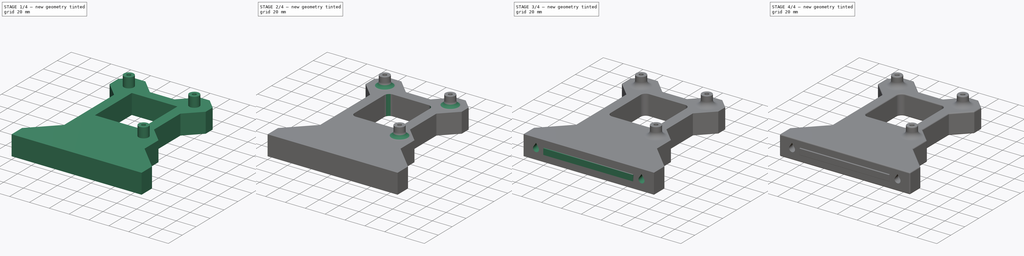
[diagram: build sequence overview — one tinted view per stage of 4, left to right]
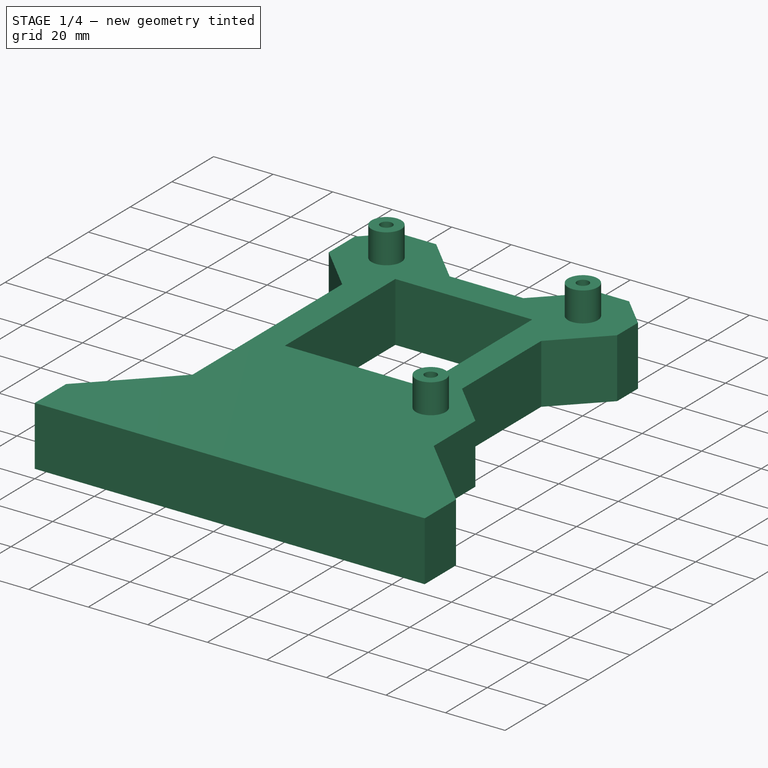
[diagram: stage 1 of 4 — iso view after this stage's code; geometry added in this stage tinted green]
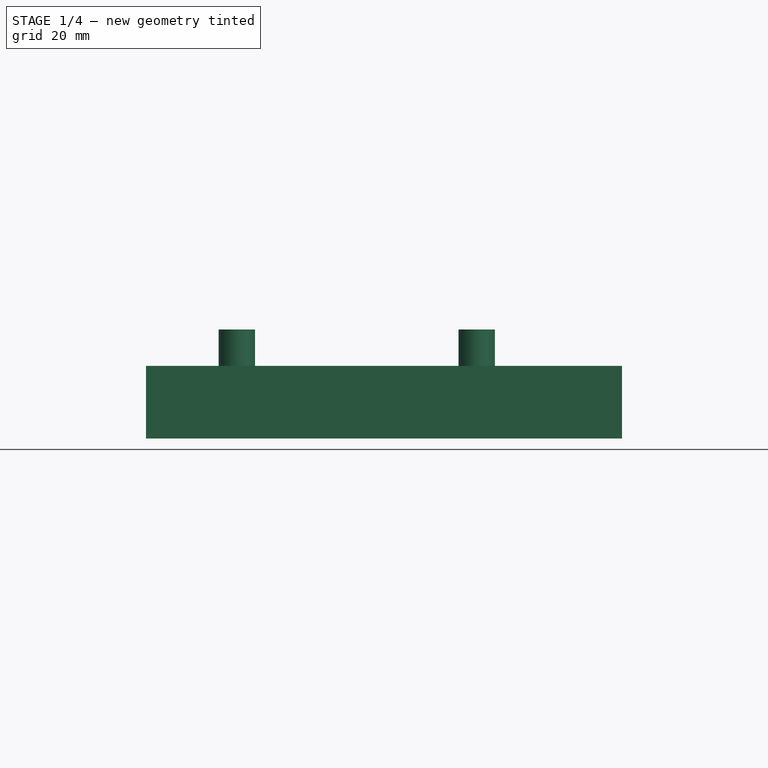
[diagram: stage 1 of 4 — front view after this stage's code; geometry added in this stage tinted green]
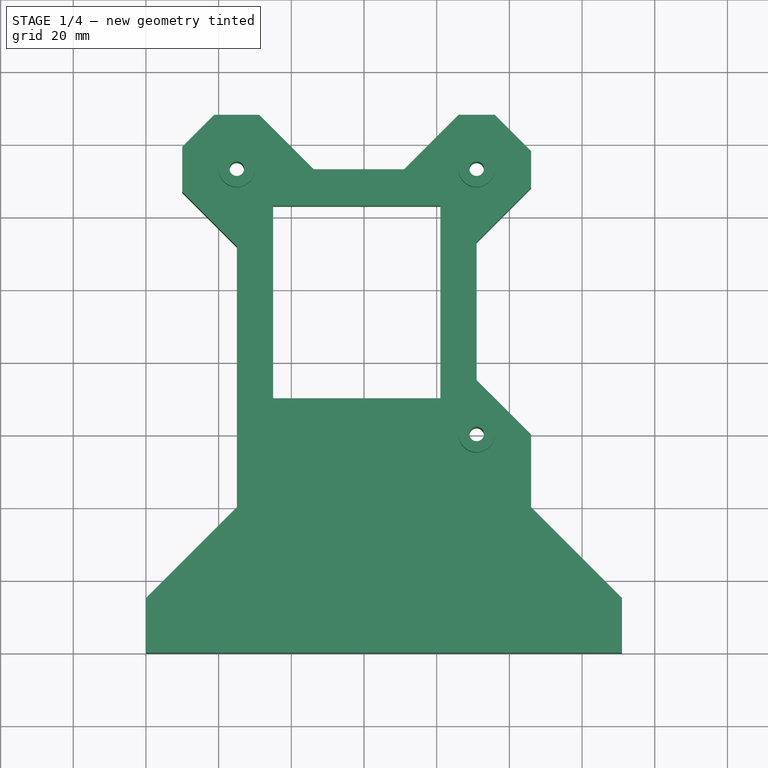
[diagram: stage 1 of 4 — top view after this stage's code; geometry added in this stage tinted green]
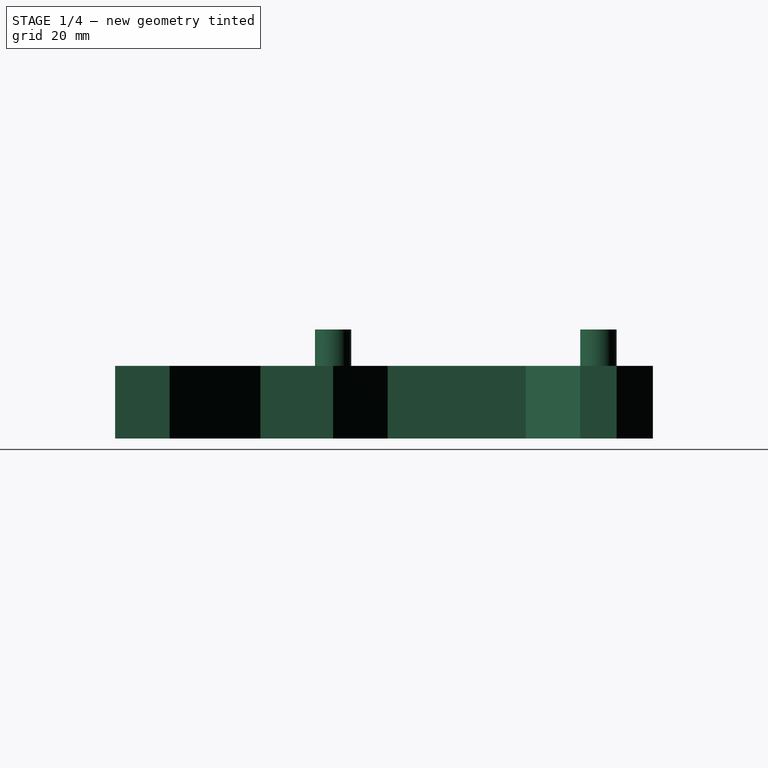
[diagram: stage 1 of 4 — right view after this stage's code; geometry added in this stage tinted green]
FCSTD DOCUMENT  (FreeCAD 1.0R39319 (Git))
Label: voronpc-motherboard-2
License: All rights reserved
LicenseURL: https://en.wikipedia.org/wiki/All_rights_reserved
objects: Sketcher::SketchObject×7, PartDesign::Pad×4, PartDesign::Fillet×3, PartDesign::Pocket×3, PartDesign::Body×1
note: 45 computed .brp shape members not serialized (recipe doc carries the construction recipe); baked Part::Feature solids carry a one-line shape summary decoded from their .brp

FEATURE [Sketcher::SketchObject] Sketch
  ArcFitTolerance = 1e-06
  AttachmentSupport = -> [XY_Plane]
  FullyConstrained = true
  MakeInternals = false
  MapMode = 5
  sketch-geometry (32):
    g0: LineSegment StartX=0 StartY=0 StartZ=0 EndX=0 EndY=15 EndZ=0
    g1: LineSegment StartX=0 StartY=15 StartZ=0 EndX=25 EndY=40 EndZ=0
    g2: LineSegment StartX=25 StartY=40 StartZ=0 EndX=25 EndY=111.787 EndZ=0
    g3: LineSegment StartX=25 StartY=111.787 StartZ=0 EndX=10 EndY=126.787 EndZ=0
    g4: LineSegment StartX=10 StartY=126.787 StartZ=0 EndX=10 EndY=139.213 EndZ=0
    g5: LineSegment StartX=10 StartY=139.213 StartZ=0 EndX=18.7868 EndY=148 EndZ=0
    g6: LineSegment StartX=18.7868 StartY=148 StartZ=0 EndX=31.2132 EndY=148 EndZ=0
    g7: LineSegment StartX=31.2132 StartY=148 StartZ=0 EndX=46.2132 EndY=133 EndZ=0
    g8: LineSegment StartX=46.2132 StartY=133 StartZ=0 EndX=71 EndY=133 EndZ=0
    g9: LineSegment StartX=71 StartY=133 StartZ=0 EndX=86 EndY=148 EndZ=0
    g10: LineSegment StartX=86 StartY=148 StartZ=0 EndX=96 EndY=148 EndZ=0
    g11: LineSegment StartX=96 StartY=148 StartZ=0 EndX=106 EndY=138 EndZ=0
    g12: LineSegment StartX=106 StartY=138 StartZ=0 EndX=106 EndY=128 EndZ=0
    g13: LineSegment StartX=106 StartY=128 StartZ=0 EndX=91 EndY=113 EndZ=0
    g14: LineSegment StartX=91 StartY=113 StartZ=0 EndX=91 EndY=75 EndZ=0
    g15: LineSegment StartX=91 StartY=75 StartZ=0 EndX=106 EndY=60 EndZ=0
    g16: LineSegment StartX=106 StartY=60 StartZ=0 EndX=106 EndY=40 EndZ=0
    g17: LineSegment StartX=106 StartY=40 StartZ=0 EndX=131 EndY=15 EndZ=0
    g18: LineSegment StartX=131 StartY=15 StartZ=0 EndX=131 EndY=0 EndZ=0
    g19: LineSegment StartX=131 StartY=0 StartZ=0 EndX=0 EndY=0 EndZ=0
    g20: Circle CenterX=25 CenterY=133 CenterZ=0 NormalX=0 NormalY=0 NormalZ=1 AngleXU=0 Radius=2
    g21: Circle CenterX=91 CenterY=133 CenterZ=0 NormalX=0 NormalY=0 NormalZ=1 AngleXU=0 Radius=2
    g22: Circle CenterX=91 CenterY=60 CenterZ=0 NormalX=0 NormalY=0 NormalZ=1 AngleXU=0 Radius=2
    g23: GeomPoint X=91 Y=148 Z=0
    g24: GeomPoint X=25 Y=148 Z=0
    g25: GeomPoint X=10 Y=133 Z=0
    g26: GeomPoint X=106 Y=133 Z=0
    g27: GeomPoint X=106 Y=50 Z=0
    g28: LineSegment StartX=35 StartY=123 StartZ=0 EndX=35 EndY=70 EndZ=0
    g29: LineSegment StartX=35 StartY=70 StartZ=0 EndX=81 EndY=70 EndZ=0
    g30: LineSegment StartX=81 StartY=70 StartZ=0 EndX=81 EndY=123 EndZ=0
    g31: LineSegment StartX=81 StartY=123 StartZ=0 EndX=35 EndY=123 EndZ=0
  constraints (85):
    c: Coincident(g0,g-1)
    c: PointOnObject(g0,g-2)
    c: Coincident(g1,g0)
    c: Coincident(g2,g1)
    c: Vertical(g2)
    c: Coincident(g3,g2)
    c: Coincident(g4,g3)
    c: Coincident(g5,g4)
    c: Coincident(g6,g5)
    c: Coincident(g7,g6)
    c: Coincident(g8,g7)
    c: Horizontal(g8)
    c: Coincident(g9,g8)
    c: Coincident(g10,g9)
    c: Horizontal(g10)
    c: Coincident(g11,g10)
    c: Vertical(g12)
    c: Vertical(g14)
    c: Vertical(g16)
    c: Coincident(g17,g16)
    c: Coincident(g18,g17)
    c: PointOnObject(g18,g-1)
    c: Vertical(g18)
    c: Coincident(g19,g18)
    c: Coincident(g19,g0)
    c: Vertical(g21,g22)
    c: Horizontal(g21,g20)
    c: Horizontal(g6,g5)
    c: DistanceY(g22,g21) = 73
    c: DistanceX(g20,g21) = 66
    c: Coincident(g16,g15)
    c: Coincident(g14,g15)
    c: Coincident(g11,g12)
    c: Coincident(g12,g13)
    c: Coincident(g13,g14)
    c: Diameter(g21) = 4
    c: Diameter(g20) = 4
    c: Diameter(g22) = 4
    c: Horizontal(g21,g8)
    c: Vertical(g21,g13)
    c: Vertical(g20,g2)
    c: Angle(g8,g7) = 2.35619
    c: Angle(g3,g2) = 2.35619
    c: Angle(g5,g6) = 2.35619
    c: Vertical(g4,g3)
    c: Equal(g4,g5)
    c: Equal(g5,g6)
    c: Angle(g9,g10) = 2.35619
    c: Angle(g10,g11) = 2.35619
    c: Angle(g12,g13) = 2.35619
    c: Horizontal(g9,g6)
    c: Angle(g15,g14) = 2.35619
    c: Angle(g17,g16) = 2.35619
    c: DistanceX(g21,g12) = 15
    c: DistanceY(g21,g9) = 15
    c: DistanceX(g3,g20) = 15
    c: Symmetric(g9,g10,g23)
    c: Vertical(g23,g21)
    c: Symmetric(g6,g6,g24)
    c: Symmetric(g4,g4,g25)
    c: Symmetric(g12,g12,g26)
    c: Horizontal(g25,g20)
    c: Horizontal(g26,g21)
    c: Symmetric(g16,g16,g27)
    c: Coincident(g28,g29)
    c: Coincident(g29,g30)
    c: Coincident(g30,g31)
    c: Coincident(g31,g28)
    c: Vertical(g28)
    c: Vertical(g30)
    c: Horizontal(g29)
    c: Horizontal(g31)
    c: DistanceX(g30,g21) = 10
    c: DistanceX(g20,g28) = 10
    c: DistanceY(g28,g20) = 10
    c: DistanceY(g22,g29) = 10
    c: DistanceX(g22,g27) = 15
    c: DistanceY(g18,g22) = 60
    c: DistanceX(g16,g17) = 25
    c: DistanceX(g0,g1) = 25
    c: DistanceY(g0,g0) = 15
    c: DistanceY(g18,g18) = 15
    c: Angle(g0,g1) = 2.35619
    c: DistanceY(g22,g14) = 15
    c: DistanceX(g10,g10) = 10
FEATURE [PartDesign::Pad] Pad
  Direction = (0,0,1)
  Length = 20
  Length2 = 10
  Profile = -> Sketch
  ReferenceAxis = -> Sketch [N_Axis]
  Refine = true
  Suppressed = false
  Type = 0
FEATURE [Sketcher::SketchObject] Sketch001
  ArcFitTolerance = 1e-06
  AttachmentSupport = -> [Pad]
  ExternalGeometry = -> [Pad]
  FullyConstrained = true
  MakeInternals = false
  MapMode = 5
  Placement = pos=(0,0,20) rot=(0,0,1;0rad)
  sketch-geometry (6):
    g0: Circle CenterX=25 CenterY=133 CenterZ=0 NormalX=0 NormalY=0 NormalZ=1 AngleXU=0 Radius=2
    g1: Circle CenterX=91 CenterY=133 CenterZ=0 NormalX=0 NormalY=0 NormalZ=1 AngleXU=0 Radius=2
    g2: Circle CenterX=91 CenterY=60 CenterZ=0 NormalX=0 NormalY=0 NormalZ=1 AngleXU=0 Radius=2
    g3: Circle CenterX=25 CenterY=133 CenterZ=0 NormalX=0 NormalY=0 NormalZ=1 AngleXU=0 Radius=5
    g4: Circle CenterX=91 CenterY=133 CenterZ=0 NormalX=0 NormalY=0 NormalZ=1 AngleXU=0 Radius=5
    g5: Circle CenterX=91 CenterY=60 CenterZ=0 NormalX=0 NormalY=0 NormalZ=1 AngleXU=0 Radius=5
  constraints (12):
    c: Coincident(g0,g-4)
    c: PointOnObject(g-3,g0)
    c: Coincident(g1,g-5)
    c: Equal(g1,g-5)
    c: Coincident(g2,g-6)
    c: Equal(g2,g-6)
    c: Diameter(g3) = 10
    c: Coincident(g3,g0)
    c: Diameter(g4) = 10
    c: Coincident(g4,g1)
    c: Diameter(g5) = 10
    c: Coincident(g5,g2)
FEATURE [PartDesign::Pad] Pad001
  BaseFeature = -> Pad
  Direction = (0,0,1)
  Length = 10
  Length2 = 10
  Profile = -> Sketch001
  ReferenceAxis = -> Sketch001 [N_Axis]
  Refine = true
  Suppressed = false
  Type = 0
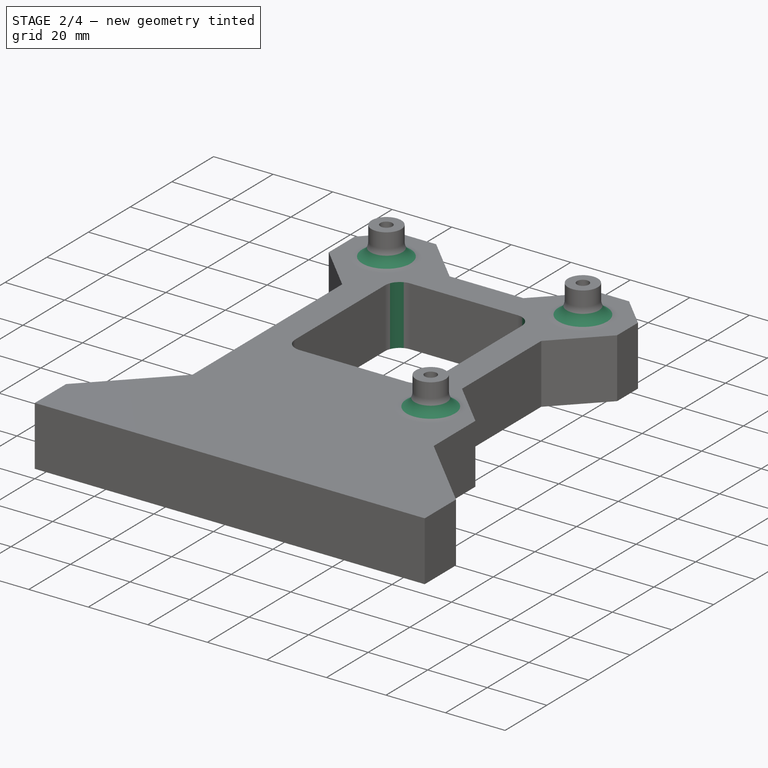
[diagram: stage 2 of 4 — iso view after this stage's code; geometry added in this stage tinted green]
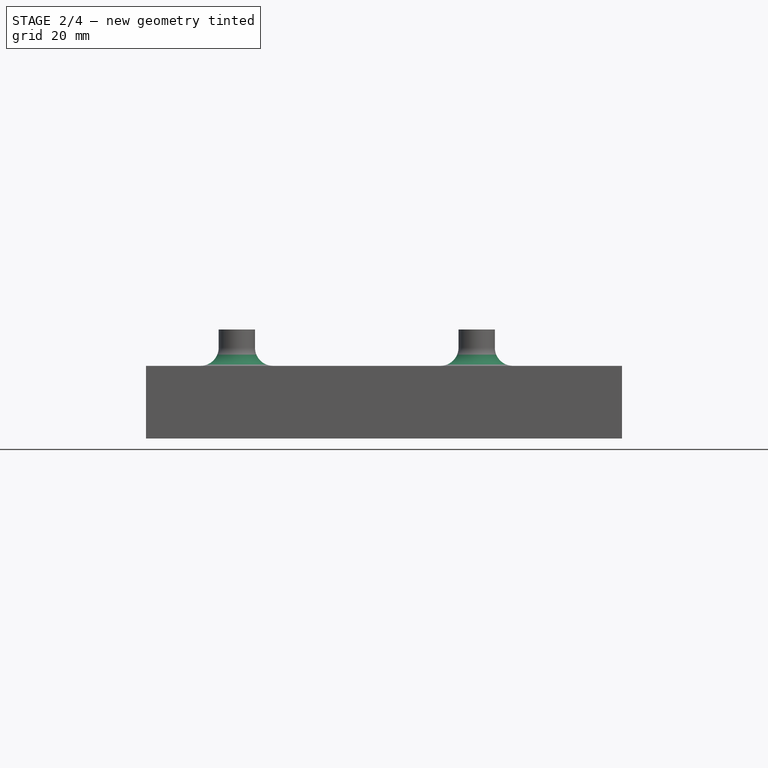
[diagram: stage 2 of 4 — front view after this stage's code; geometry added in this stage tinted green]
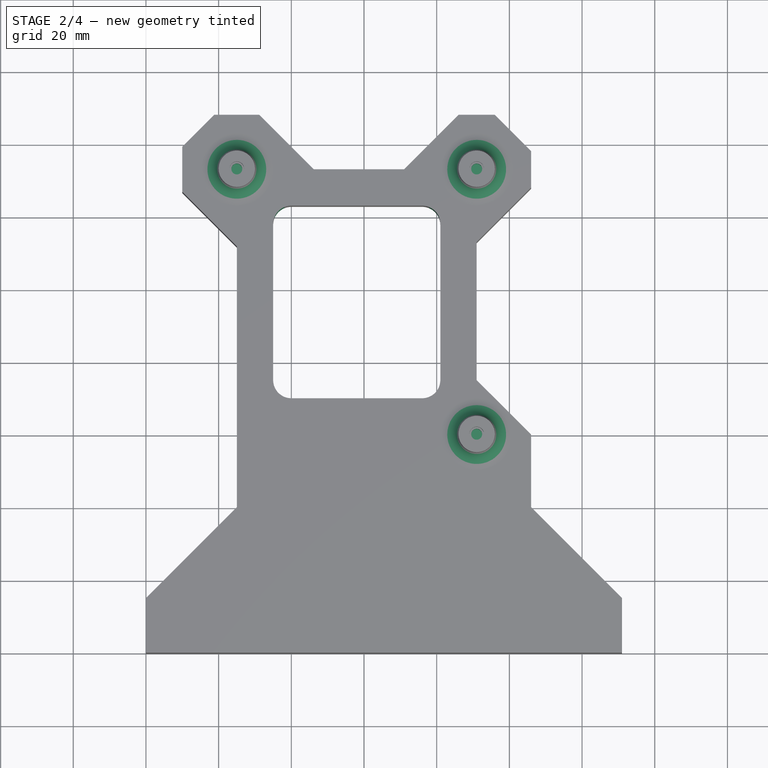
[diagram: stage 2 of 4 — top view after this stage's code; geometry added in this stage tinted green]
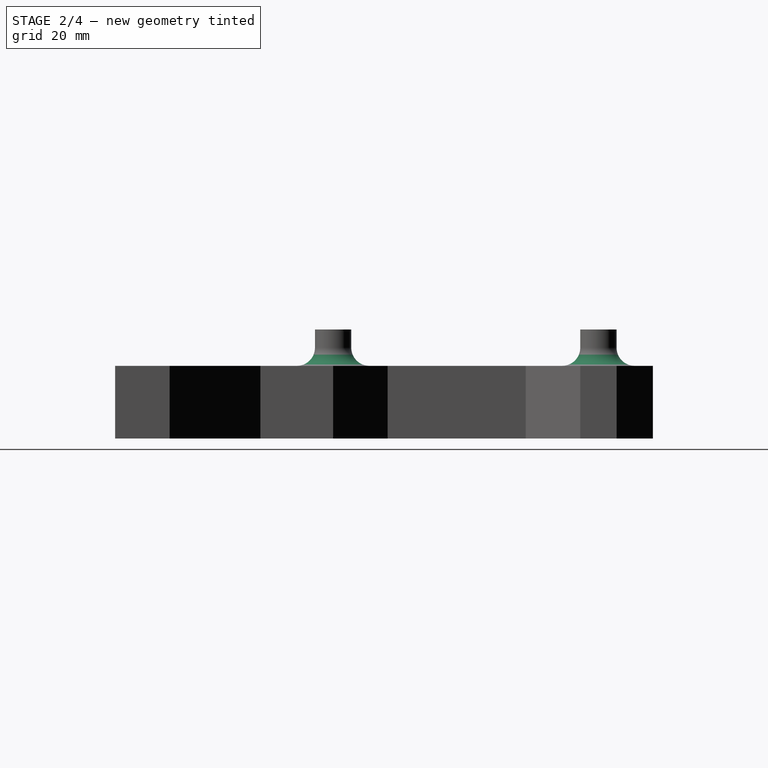
[diagram: stage 2 of 4 — right view after this stage's code; geometry added in this stage tinted green]
FEATURE [PartDesign::Fillet] Fillet
  Base = -> Pad001 [Edge53,Edge58,Edge52,Edge75,Edge78,Edge77,Edge76]
  BaseFeature = -> Pad001
  Radius = 5
  Refine = true
  SupportTransform = false
  Suppressed = false
  UseAllEdges = false
FEATURE [Sketcher::SketchObject] Sketch002
  ArcFitTolerance = 1e-06
  AttachmentSupport = -> [Fillet]
  ExternalGeometry = -> [Fillet]
  FullyConstrained = true
  MakeInternals = false
  MapMode = 5
  Placement = pos=(0,0,0) rot=(1,0,0;3.14159rad)
  sketch-geometry (3):
    g0: Circle CenterX=25 CenterY=-133 CenterZ=0 NormalX=0 NormalY=0 NormalZ=1 AngleXU=0 Radius=2
    g1: Circle CenterX=91 CenterY=-133 CenterZ=0 NormalX=0 NormalY=0 NormalZ=1 AngleXU=0 Radius=2
    g2: Circle CenterX=91 CenterY=-60 CenterZ=0 NormalX=0 NormalY=0 NormalZ=1 AngleXU=0 Radius=2
  constraints (6):
    c: Coincident(g0,g-3)
    c: Equal(g0,g-3)
    c: Coincident(g1,g-5)
    c: Equal(g1,g-5)
    c: Coincident(g2,g-4)
    c: Equal(g2,g-4)
FEATURE [PartDesign::Pad] Pad002
  BaseFeature = -> Fillet
  Direction = (0,0,-1)
  Length = 25
  Length2 = 10
  Profile = -> Sketch002
  ReferenceAxis = -> Sketch002 [N_Axis]
  Refine = true
  Reversed = true
  Suppressed = false
  Type = 0
FEATURE [Sketcher::SketchObject] Sketch003
  ArcFitTolerance = 1e-06
  AttachmentSupport = -> [Pad002]
  ExternalGeometry = -> [Pad002]
  FullyConstrained = true
  MakeInternals = false
  MapMode = 5
  Placement = pos=(0,0,25) rot=(0,0,1;0rad)
  sketch-geometry (3):
    g0: Circle CenterX=25 CenterY=133 CenterZ=0 NormalX=0 NormalY=0 NormalZ=1 AngleXU=0 Radius=1.5
    g1: Circle CenterX=91 CenterY=133 CenterZ=0 NormalX=0 NormalY=0 NormalZ=1 AngleXU=0 Radius=1.5
    g2: Circle CenterX=91 CenterY=60 CenterZ=0 NormalX=0 NormalY=0 NormalZ=1 AngleXU=0 Radius=1.5
  constraints (6):
    c: Diameter(g0) = 3
    c: Diameter(g1) = 3
    c: Diameter(g2) = 3
    c: Coincident(g0,g-3)
    c: Coincident(g1,g-4)
    c: Coincident(g2,g-5)
FEATURE [PartDesign::Pocket] Pocket
  BaseFeature = -> Pad002
  Direction = (0,0,-1)
  Length = 5
  Length2 = 5
  Profile = -> Sketch003
  ReferenceAxis = -> Sketch003 [N_Axis]
  Refine = true
  Suppressed = false
  Type = 0
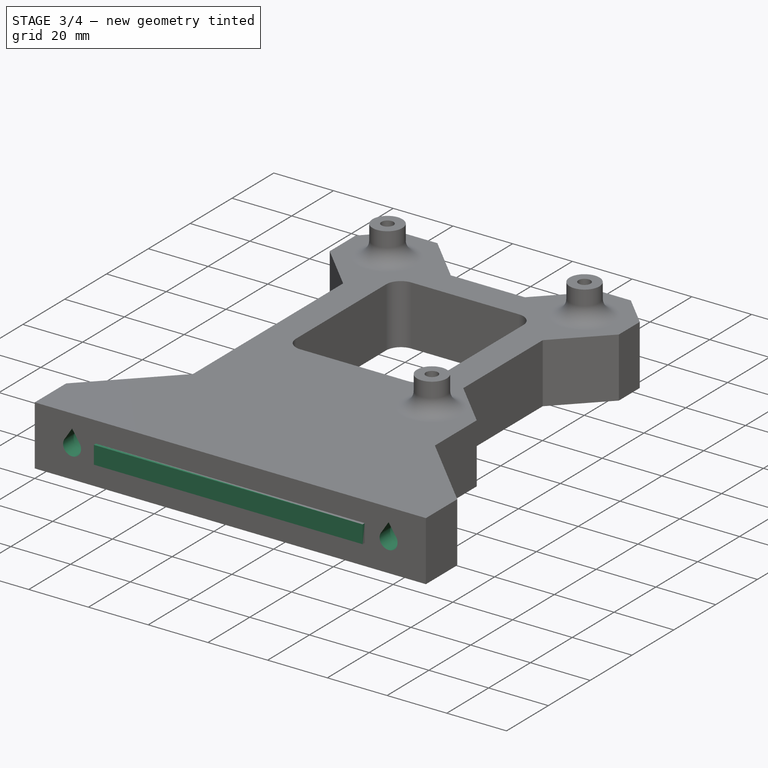
[diagram: stage 3 of 4 — iso view after this stage's code; geometry added in this stage tinted green]
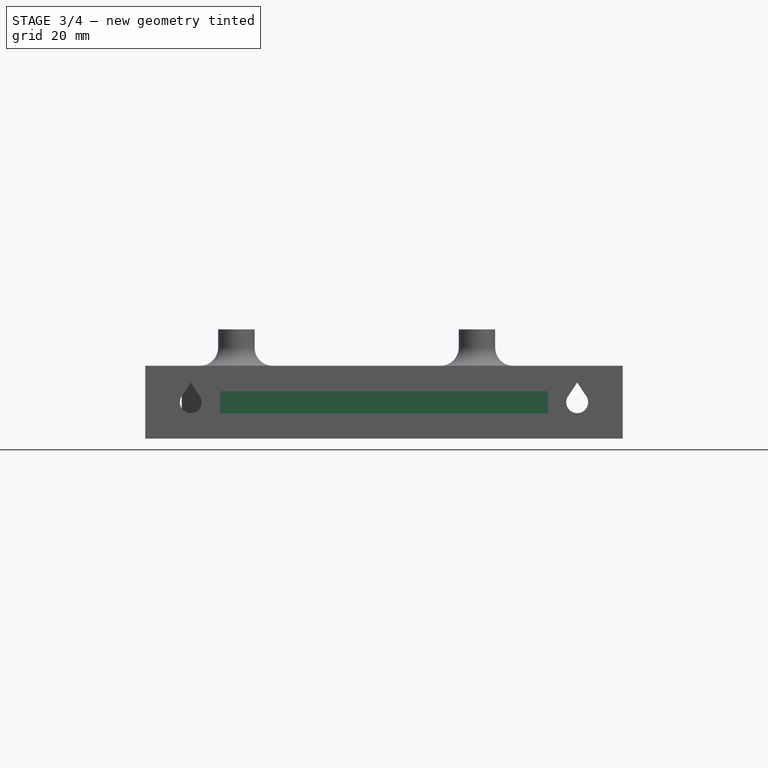
[diagram: stage 3 of 4 — front view after this stage's code; geometry added in this stage tinted green]
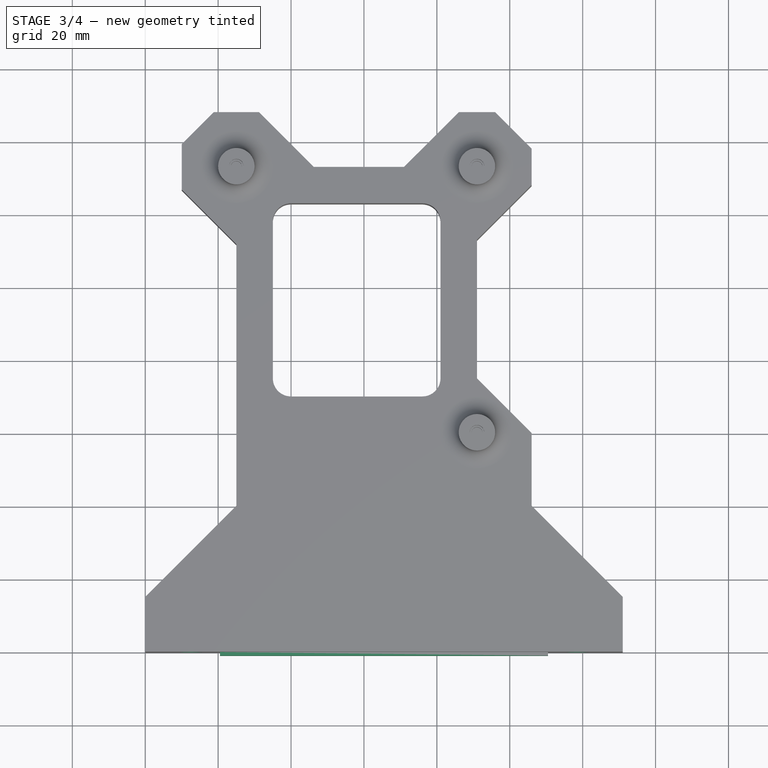
[diagram: stage 3 of 4 — top view after this stage's code; geometry added in this stage tinted green]
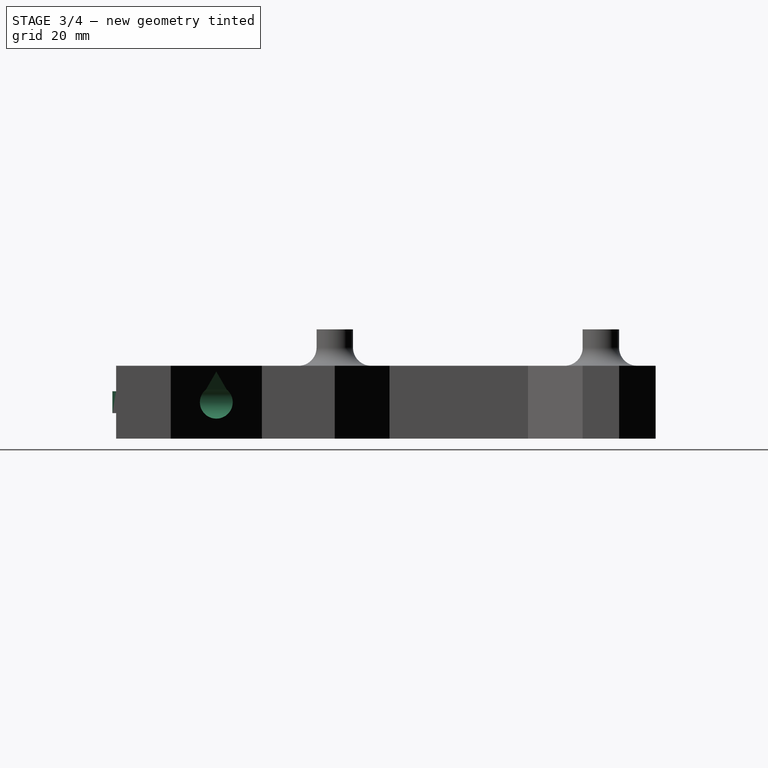
[diagram: stage 3 of 4 — right view after this stage's code; geometry added in this stage tinted green]
FEATURE [Sketcher::SketchObject] Sketch004
  ArcFitTolerance = 1e-06
  AttachmentSupport = -> [Pocket]
  ExternalGeometry = -> [Pocket]
  FullyConstrained = false
  MakeInternals = false
  MapMode = 5
  Placement = pos=(0,0,0) rot=(1,0,0;1.5708rad)
  sketch-geometry (11):
    g0: GeomPoint X=131 Y=10 Z=0
    g1: ArcOfCircle CenterX=118.5 CenterY=10 CenterZ=0 NormalX=0 NormalY=0 NormalZ=1 AngleXU=0 Radius=3 StartAngle=2.41186 EndAngle=7.01291
    g2: LineSegment StartX=120.736 StartY=12 StartZ=0 EndX=118.5 EndY=15.4215 EndZ=0
    g3: LineSegment StartX=118.5 StartY=15.4215 StartZ=0 EndX=116.264 EndY=12 EndZ=0
    g4: Circle [constr] CenterX=118.5 CenterY=12 CenterZ=0 NormalX=0 NormalY=0 NormalZ=1 AngleXU=0 Radius=3.42152
    g5: GeomPoint X=118.5 Y=10 Z=0
    g6: ArcOfCircle CenterX=12.5 CenterY=10 CenterZ=0 NormalX=0 NormalY=0 NormalZ=1 AngleXU=0 Radius=3 StartAngle=2.41186 EndAngle=7.01291
    g7: LineSegment StartX=14.7361 StartY=12 StartZ=0 EndX=12.5 EndY=15.4 EndZ=0
    g8: LineSegment StartX=12.5 StartY=15.4 StartZ=0 EndX=10.2639 EndY=12 EndZ=0
    g9: Circle [constr] CenterX=12.5 CenterY=12 CenterZ=0 NormalX=0 NormalY=0 NormalZ=1 AngleXU=0 Radius=3.4
    g10: GeomPoint X=12.5 Y=10 Z=0
  constraints (26):
    c: Symmetric(g-3,g-3,g0)
    c: Diameter(g1) = 6
    c: Coincident(g2,g3)
    c: PointOnObject(g2,g4)
    c: Vertical(g4,g1)
    c: Coincident(g5,g1)
    c: Coincident(g1,g2)
    c: Coincident(g1,g3)
    c: Vertical(g2,g1)
    c: Symmetric(g1,g1,g4)
    c: DistanceY(g1,g1) = 2
    c: Horizontal(g1,g0)
    c: Diameter(g6) = 6
    c: Coincident(g7,g8)
    c: PointOnObject(g7,g9)
    c: Vertical(g9,g6)
    c: Coincident(g10,g6)
    c: Coincident(g6,g7)
    c: Coincident(g6,g8)
    c: Vertical(g7,g6)
    c: Symmetric(g6,g6,g9)
    c: DistanceY(g6,g6) = 2
    c: DistanceY(g6,g7) = 5.4
    c: Horizontal(g6,g0)
    c: DistanceX(g-1,g6) = 12.5
    c: DistanceX(g1,g-3) = 12.5
FEATURE [PartDesign::Pocket] Pocket001
  BaseFeature = -> Pocket
  Direction = (0,1,-2e-16)
  Length = 50
  Length2 = 5
  Profile = -> Sketch004
  ReferenceAxis = -> Sketch004 [N_Axis]
  Refine = true
  Suppressed = false
  Type = 0
FEATURE [Sketcher::SketchObject] Sketch005
  ArcFitTolerance = 1e-06
  AttachmentSupport = -> [Pocket001]
  ExternalGeometry = -> [Pocket001]
  FullyConstrained = false
  MakeInternals = false
  MapMode = 5
  Placement = pos=(0,0,0) rot=(1,0,0;1.5708rad)
  sketch-geometry (8):
    g0: ArcOfCircle CenterX=118.5 CenterY=10 CenterZ=0 NormalX=0 NormalY=0 NormalZ=1 AngleXU=0 Radius=4.5 StartAngle=2.25079 EndAngle=7.17399
    g1: ArcOfCircle CenterX=12.5 CenterY=10 CenterZ=0 NormalX=0 NormalY=0 NormalZ=1 AngleXU=0 Radius=4.5 StartAngle=2.51985 EndAngle=6.90493
    g2: LineSegment StartX=16.1579 StartY=12.621 StartZ=0 EndX=12.5 EndY=18.4 EndZ=0
    g3: LineSegment StartX=12.5 StartY=18.4 StartZ=0 EndX=8.84211 EndY=12.621 EndZ=0
    g4: Circle [constr] CenterX=12.5 CenterY=14.3529 CenterZ=0 NormalX=0 NormalY=0 NormalZ=1 AngleXU=0 Radius=4.04714
    g5: LineSegment StartX=121.33 StartY=13.4991 StartZ=0 EndX=118.5 EndY=18.4 EndZ=0
    g6: LineSegment StartX=118.5 StartY=18.4 StartZ=0 EndX=115.67 EndY=13.4991 EndZ=0
    g7: Circle [constr] CenterX=118.5 CenterY=15.1327 CenterZ=0 NormalX=0 NormalY=0 NormalZ=1 AngleXU=0 Radius=3.26726
  constraints (22):
    c: Diameter(g0) = 9
    c: Coincident(g0,g-4)
    c: Diameter(g1) = 9
    c: Coincident(g1,g-3)
    c: Coincident(g2,g3)
    c: Equal(g2,g3)
    c: PointOnObject(g2,g4)
    c: PointOnObject(g3,g4)
    c: PointOnObject(g2,g4)
    c: Vertical(g2,g-5)
    c: DistanceY(g-5,g2) = 3
    c: Coincident(g1,g2)
    c: Coincident(g1,g3)
    c: Coincident(g5,g6)
    c: Equal(g5,g6)
    c: PointOnObject(g5,g7)
    c: PointOnObject(g6,g7)
    c: PointOnObject(g5,g7)
    c: Vertical(g5,g-6)
    c: Horizontal(g5,g2)
    c: Coincident(g0,g6)
    c: Coincident(g0,g5)
FEATURE [PartDesign::Pocket] Pocket002
  BaseFeature = -> Pocket001
  Direction = (0,1,-2e-16)
  Length = 50
  Length2 = -5
  Profile = -> Sketch005
  ReferenceAxis = -> Sketch005 [N_Axis]
  Refine = true
  Suppressed = false
  Type = 4
FEATURE [Sketcher::SketchObject] Sketch006
  ArcFitTolerance = 1e-06
  AttachmentSupport = -> [Pocket002]
  ExternalGeometry = -> [Pocket002]
  FullyConstrained = true
  MakeInternals = false
  MapMode = 5
  Placement = pos=(0,0,0) rot=(1,0,0;1.5708rad)
  sketch-geometry (8):
    g0: GeomPoint X=0 Y=10 Z=0
    g1: LineSegment StartX=20.5 StartY=13 StartZ=0 EndX=20.5 EndY=7 EndZ=0
    g2: LineSegment StartX=20.5 StartY=7 StartZ=0 EndX=110.5 EndY=7 EndZ=0
    g3: LineSegment StartX=110.5 StartY=7 StartZ=0 EndX=110.5 EndY=13 EndZ=0
    g4: LineSegment StartX=110.5 StartY=13 StartZ=0 EndX=20.5 EndY=13 EndZ=0
    g5: GeomPoint X=20.5 Y=10 Z=0
    g6: GeomPoint X=65.5 Y=0 Z=0
    g7: GeomPoint X=65.5 Y=7 Z=0
  constraints (16):
    c: Symmetric(g-3,g-3,g0)
    c: Coincident(g1,g2)
    c: Coincident(g2,g3)
    c: Coincident(g3,g4)
    c: Coincident(g4,g1)
    c: Vertical(g1)
    c: Vertical(g3)
    c: Horizontal(g2)
    c: Horizontal(g4)
    c: Distance(g1,g3) = 90
    c: Distance(g2,g4) = 6
    c: Symmetric(g1,g1,g5)
    c: Horizontal(g5,g0)
    c: Symmetric(g-4,g-4,g6)
    c: Symmetric(g2,g2,g7)
    c: Vertical(g7,g6)
FEATURE [PartDesign::Pad] Pad003
  BaseFeature = -> Pocket002
  Direction = (0,-1,2e-16)
  Length = 1
  Length2 = 10
  Profile = -> Sketch006
  ReferenceAxis = -> Sketch006 [N_Axis]
  Refine = true
  Suppressed = false
  Type = 0
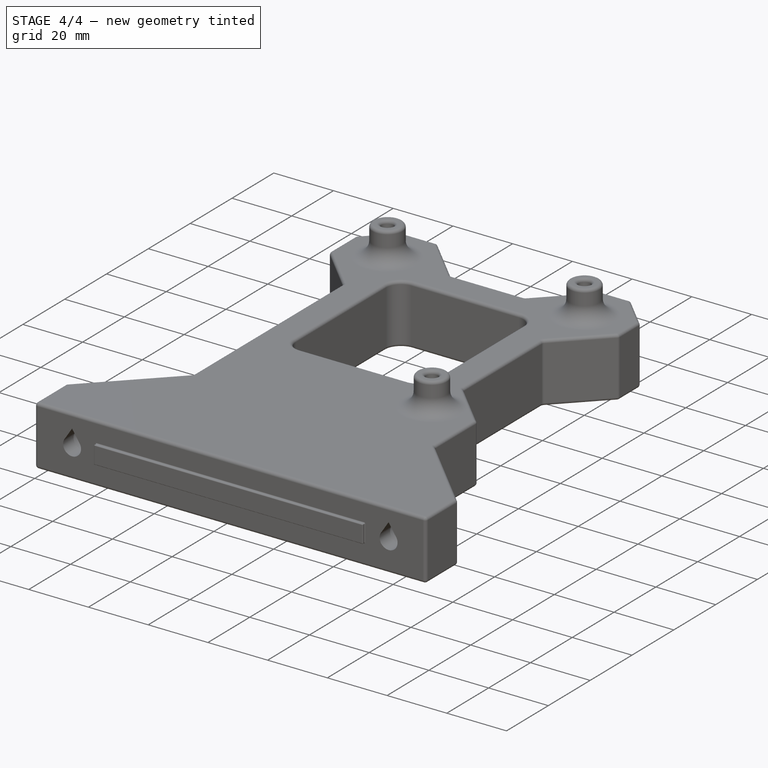
[diagram: stage 4 of 4 — iso view after this stage's code; geometry added in this stage tinted green]
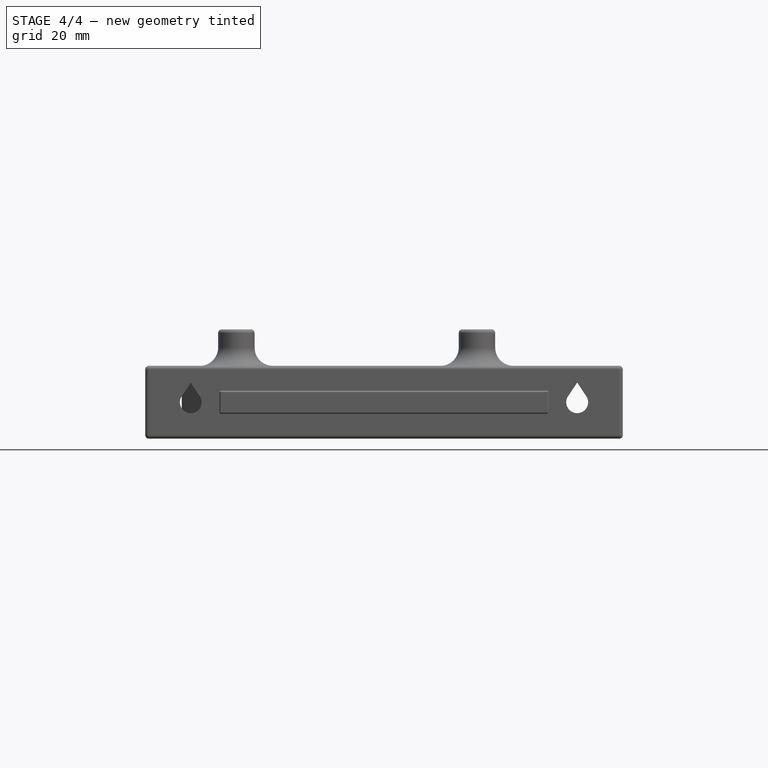
[diagram: stage 4 of 4 — front view after this stage's code; geometry added in this stage tinted green]
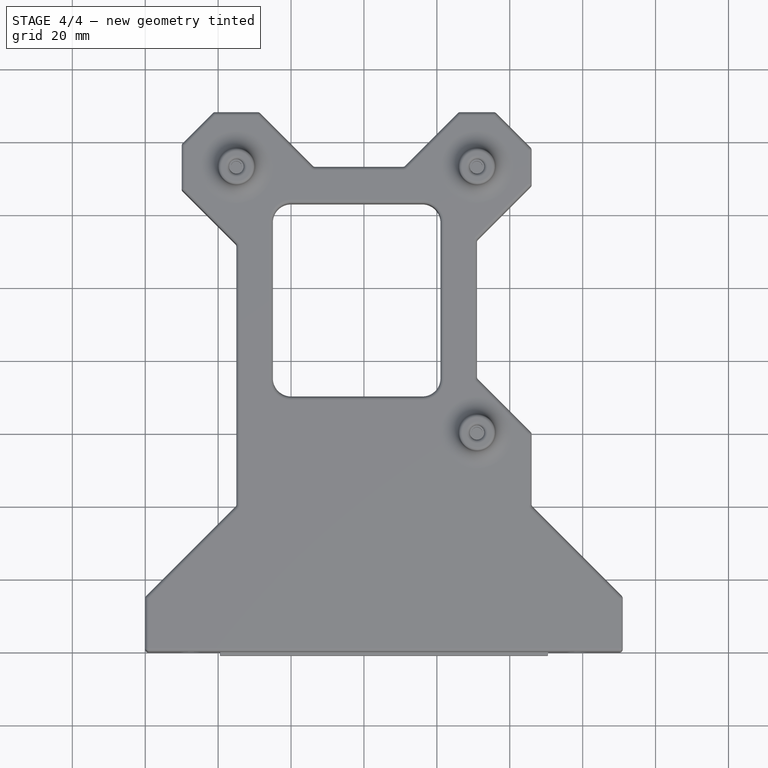
[diagram: stage 4 of 4 — top view after this stage's code; geometry added in this stage tinted green]
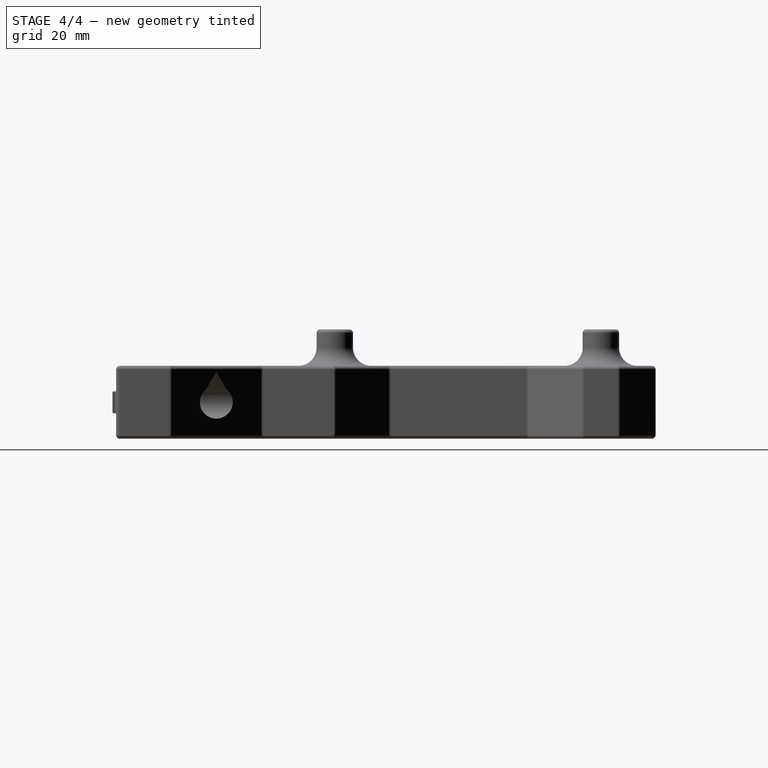
[diagram: stage 4 of 4 — right view after this stage's code; geometry added in this stage tinted green]
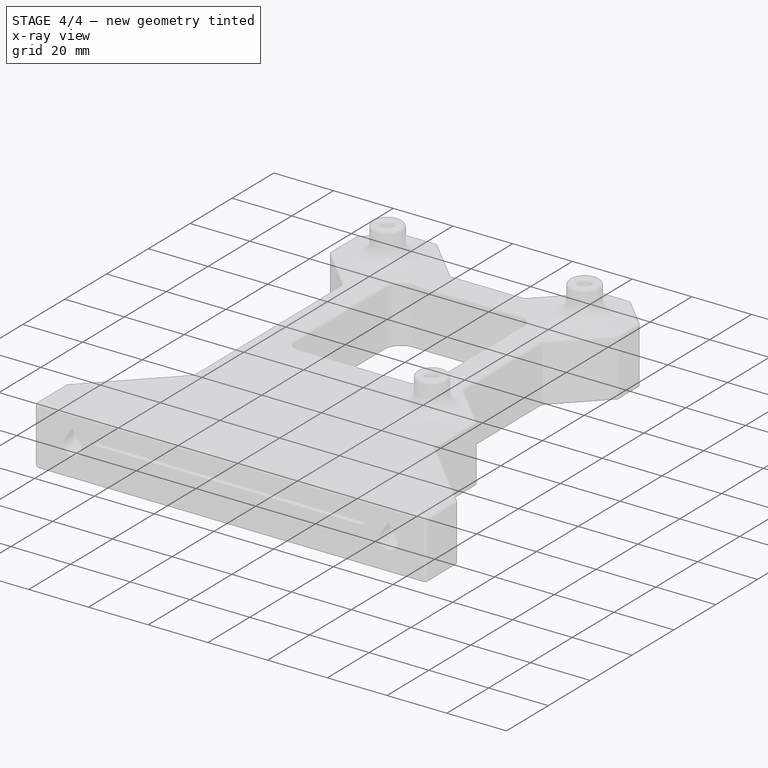
[diagram: stage 4 of 4 — x-ray composite at the iso view; earlier geometry ghosted, this stage's added geometry solid]
FEATURE [PartDesign::Fillet] Fillet001
  Base = -> Pad003 [Edge96,Edge94,Edge132,Edge135,Edge130,Edge93,Edge129,Edge128,Edge133,Edge95,Edge134,Edge131]
  BaseFeature = -> Pad003
  Radius = 0.25
  Refine = true
  SupportTransform = false
  Suppressed = false
  UseAllEdges = false
FEATURE [PartDesign::Fillet] Fillet002
  Base = -> Fillet001 [Edge37,Edge9,Edge35,Edge75,Edge77,Edge143,Edge52,Edge54,Edge36,Edge10,Edge11,Edge12,Edge72,Edge73,Edge74,Edge64,Edge81,Edge79,Edge141,Edge83,Edge51,Edge88,Edge86,Edge84,Edge76,Edge131,Edge82,Edge78,Edge80,Edge187,Edge192,Edge193,Edge189,Edge89,Edge87,Edge85,Edge50,Edge139,Edge140,Edge122,+28 more]
  BaseFeature = -> Fillet001
  Radius = 1
  Refine = true
  SupportTransform = false
  Suppressed = false
  UseAllEdges = false
FEATURE [PartDesign::Body] Body
  AllowCompound = false
  Group = -> [Sketch,Pad,Sketch001,Pad001,Fillet,Sketch002,Pad002,Sketch003,Pocket,Sketch004,Pocket001,Sketch005,Pocket002,Sketch006,Pad003,Fillet001,Fillet002]
  Origin = -> Origin
  Tip = -> Fillet002
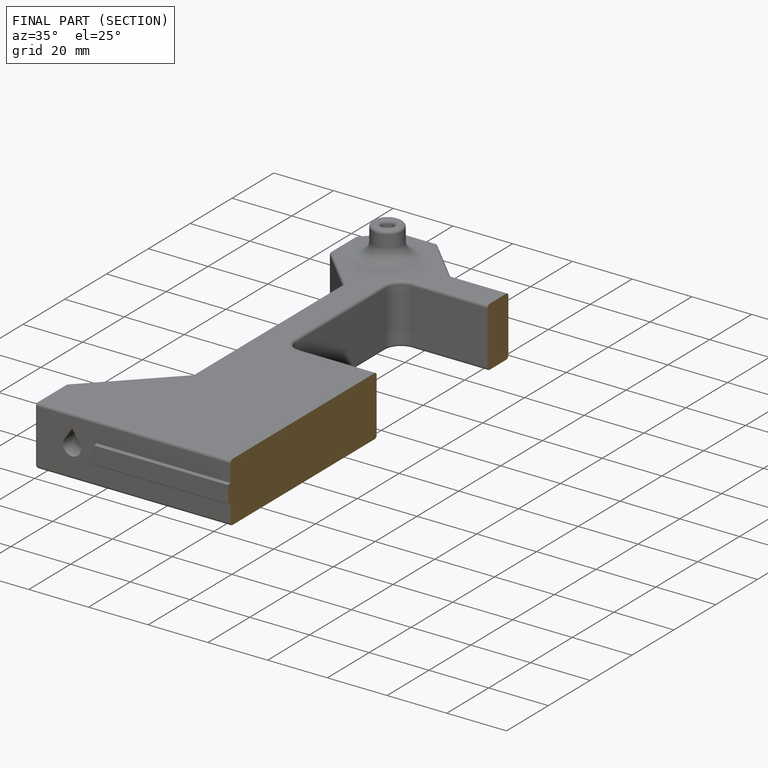
[diagram: finished part — half-section view (interior)]
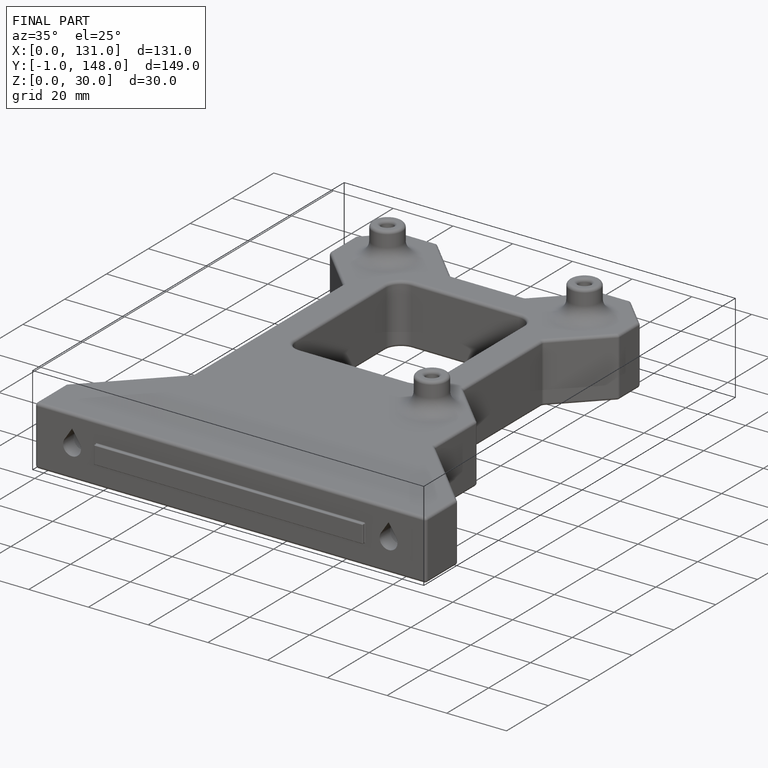
[diagram: finished part — iso view with bounding-box wireframe]
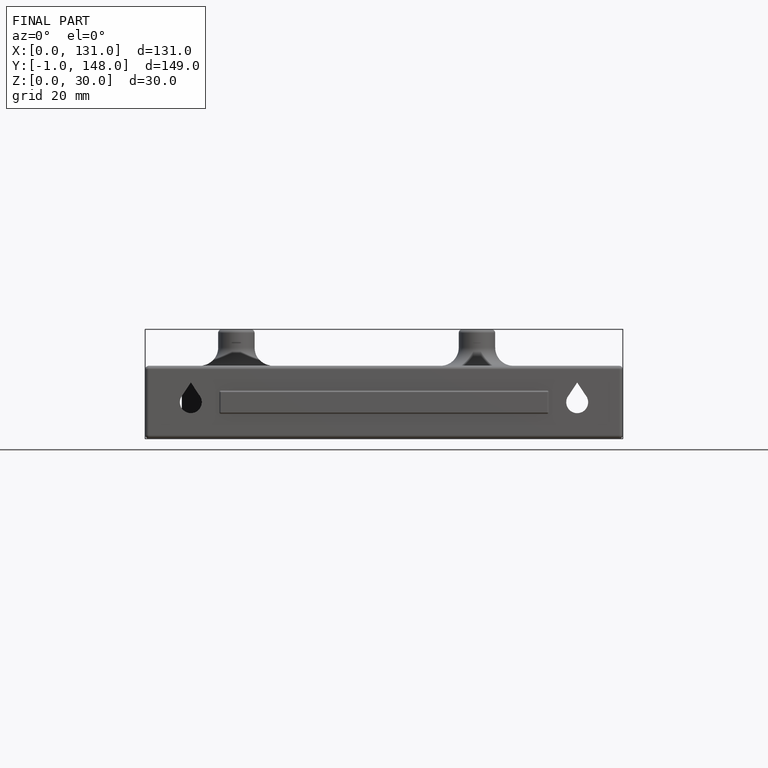
[diagram: finished part — front view with bounding-box wireframe]
